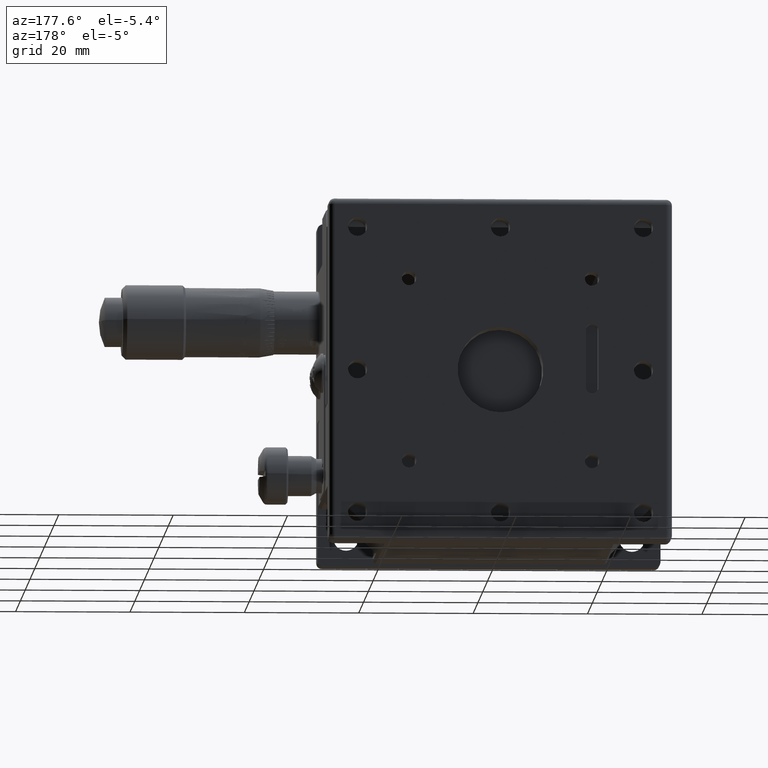
[diagram: clean part render]
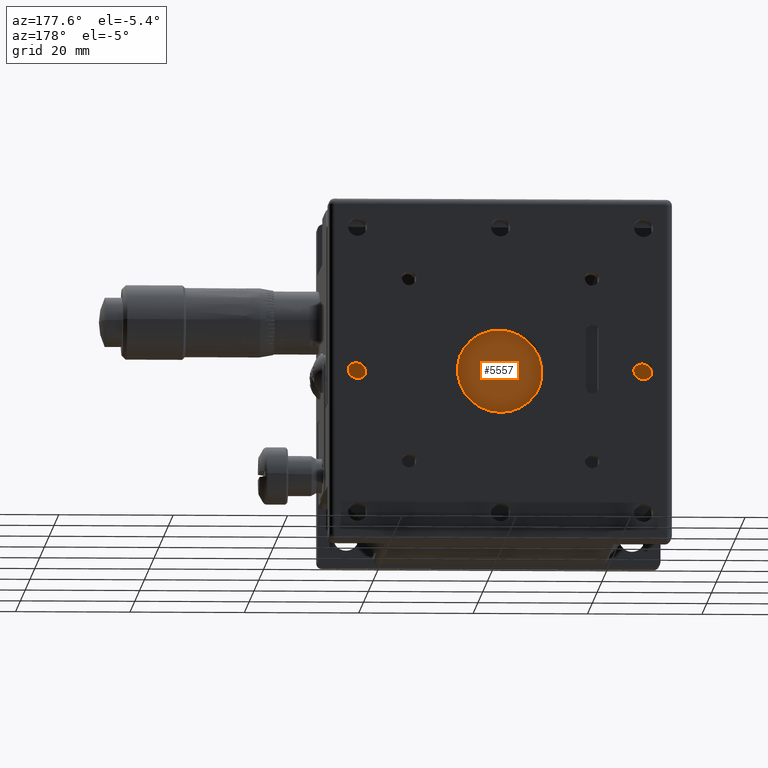
[diagram: same view with one face highlighted and labeled with its STEP entity id]
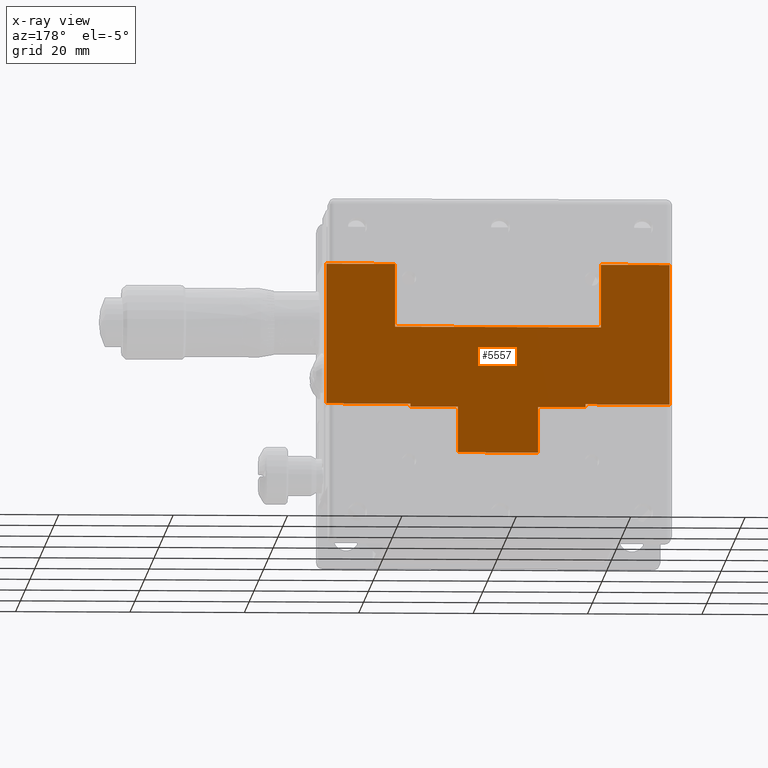
[diagram: x-ray of the same camera — body ghosted, the highlighted face saturated]
A machine part, auxiliary view. The second image highlights one B-rep face of the part: STEP entity #5557.
The next image is the same camera in x-ray: the body ghosted, the highlighted face saturated — about 0% of this face is hidden behind the body in this view.
In plain terms, the highlighted planar face has unit normal (-0, 1, 0).
Its self-contained STEP definition (entity closure, byte-faithful):
#434 = CARTESIAN_POINT ( 'NONE',  ( -30.00000000000000000, 44.00000000000000000, -4.999999999999940492 ) ) ;
#1234 = VERTEX_POINT ( 'NONE', #16058 ) ;
#2083 = DIRECTION ( 'NONE',  ( -1.000000000000000000, 0.000000000000000000, 2.360167994526269913E-16 ) ) ;
#2852 = CARTESIAN_POINT ( 'NONE',  ( 17.99999999999975131, 44.00000000000000000, 8.500000000000000000 ) ) ;
#3341 = DIRECTION ( 'NONE',  ( -1.000000000000000000, 0.000000000000000000, 0.000000000000000000 ) ) ;
#3960 = VECTOR ( 'NONE', #35652, 1000.000000000000000 ) ;
#4145 = DIRECTION ( 'NONE',  ( -1.000000000000000000, -1.927470528863119788E-16, 0.000000000000000000 ) ) ;
#5181 = CARTESIAN_POINT ( 'NONE',  ( 30.00000000000000000, 44.00000000000000000, -4.999999999999940492 ) ) ;
#5544 = ORIENTED_EDGE ( 'NONE', *, *, #31423, .T. ) ;
#5557 = ADVANCED_FACE ( 'NONE', ( #55652 ), #6132, .T. ) ;
#6132 = PLANE ( 'NONE',  #53976 ) ;
#6240 = ORIENTED_EDGE ( 'NONE', *, *, #53023, .T. ) ;
#6530 = DIRECTION ( 'NONE',  ( 0.000000000000000000, 0.000000000000000000, -1.000000000000000000 ) ) ;
#6620 = DIRECTION ( 'NONE',  ( 0.000000000000000000, 0.000000000000000000, 1.000000000000000000 ) ) ;
#6770 = VECTOR ( 'NONE', #58318, 1000.000000000000000 ) ;
#7343 = ORIENTED_EDGE ( 'NONE', *, *, #48224, .T. ) ;
#7370 = EDGE_CURVE ( 'NONE', #25936, #16353, #12568, .T. ) ;
#8137 = ORIENTED_EDGE ( 'NONE', *, *, #32105, .F. ) ;
#8183 = LINE ( 'NONE', #54098, #58220 ) ;
#8783 = ORIENTED_EDGE ( 'NONE', *, *, #43611, .T. ) ;
#8806 = CARTESIAN_POINT ( 'NONE',  ( 15.29999999999975024, 44.00000000000000000, -5.499999999999939604 ) ) ;
#9492 = LINE ( 'NONE', #23499, #42009 ) ;
#10305 = DIRECTION ( 'NONE',  ( 1.000000000000000000, 0.000000000000000000, 0.000000000000000000 ) ) ;
#11223 = CARTESIAN_POINT ( 'NONE',  ( 6.999999999999750422, 44.00000000000000000, -13.50000000000000000 ) ) ;
#11562 = VECTOR ( 'NONE', #52230, 1000.000000000000000 ) ;
#12385 = CARTESIAN_POINT ( 'NONE',  ( 30.00000000000000000, 44.00000000000000000, -4.999999999999940492 ) ) ;
#12568 = LINE ( 'NONE', #44194, #32592 ) ;
#12634 = VECTOR ( 'NONE', #42710, 1000.000000000000000 ) ;
#13141 = VECTOR ( 'NONE', #6530, 1000.000000000000000 ) ;
#13514 = CARTESIAN_POINT ( 'NONE',  ( 17.99999999999975131, 44.00000000000000000, 8.500000000000000000 ) ) ;
#13962 = DIRECTION ( 'NONE',  ( 1.000000000000000000, 0.000000000000000000, 0.000000000000000000 ) ) ;
#14261 = EDGE_LOOP ( 'NONE', ( #8783, #47550, #37733, #46657, #30521, #14347, #27853, #7343, #5544, #6240, #17008, #51707, #35350, #55006, #33531, #8137 ) ) ;
#14308 = LINE ( 'NONE', #11223, #21484 ) ;
#14347 = ORIENTED_EDGE ( 'NONE', *, *, #35243, .T. ) ;
#14964 = VECTOR ( 'NONE', #2083, 1000.000000000000000 ) ;
#15698 = DIRECTION ( 'NONE',  ( -1.000000000000000000, 0.000000000000000000, 0.000000000000000000 ) ) ;
#15973 = EDGE_CURVE ( 'NONE', #42672, #1234, #26929, .T. ) ;
#16058 = CARTESIAN_POINT ( 'NONE',  ( -18.00000000000024869, 44.00000000000000000, 19.50000000000000000 ) ) ;
#16353 = VERTEX_POINT ( 'NONE', #19007 ) ;
#16773 = DIRECTION ( 'NONE',  ( -0.000000000000000000, 1.000000000000000000, 0.000000000000000000 ) ) ;
#17008 = ORIENTED_EDGE ( 'NONE', *, *, #7370, .T. ) ;
#17492 = CARTESIAN_POINT ( 'NONE',  ( -15.30000000000024940, 44.00000000000000000, -5.499999999999939604 ) ) ;
#17949 = LINE ( 'NONE', #55510, #56855 ) ;
#18929 = LINE ( 'NONE', #434, #11562 ) ;
#19007 = CARTESIAN_POINT ( 'NONE',  ( -15.30000000000024940, 44.00000000000000000, -4.999999999999940492 ) ) ;
#19021 = VECTOR ( 'NONE', #29875, 1000.000000000000000 ) ;
#19231 = VERTEX_POINT ( 'NONE', #24279 ) ;
#19474 = VERTEX_POINT ( 'NONE', #24653 ) ;
#20236 = LINE ( 'NONE', #47368, #13141 ) ;
#20918 = EDGE_CURVE ( 'NONE', #22812, #19474, #26303, .T. ) ;
#21484 = VECTOR ( 'NONE', #15698, 1000.000000000000000 ) ;
#22345 = LINE ( 'NONE', #23510, #55318 ) ;
#22812 = VERTEX_POINT ( 'NONE', #52935 ) ;
#23499 = CARTESIAN_POINT ( 'NONE',  ( -30.00000000000000000, 44.00000000000000000, 19.50000000000000000 ) ) ;
#23510 = CARTESIAN_POINT ( 'NONE',  ( 17.99999999999975131, 44.00000000000000000, 8.500000000000000000 ) ) ;
#23664 = EDGE_CURVE ( 'NONE', #40275, #45291, #30866, .T. ) ;
#23685 = EDGE_CURVE ( 'NONE', #35117, #40275, #31161, .T. ) ;
#23831 = VERTEX_POINT ( 'NONE', #2852 ) ;
#24110 = CARTESIAN_POINT ( 'NONE',  ( -7.000000000000249578, 44.00000000000000000, -5.499999999999939604 ) ) ;
#24111 = EDGE_CURVE ( 'NONE', #53386, #47441, #18929, .T. ) ;
#24279 = CARTESIAN_POINT ( 'NONE',  ( 6.999999999999750422, 44.00000000000000000, -5.499999999999939604 ) ) ;
#24653 = CARTESIAN_POINT ( 'NONE',  ( 30.00000000000000000, 44.00000000000000000, 19.50000000000000000 ) ) ;
#25325 = EDGE_CURVE ( 'NONE', #47441, #1234, #9492, .T. ) ;
#25936 = VERTEX_POINT ( 'NONE', #17492 ) ;
#26303 = LINE ( 'NONE', #39432, #19021 ) ;
#26307 = CARTESIAN_POINT ( 'NONE',  ( 6.999999999999750422, 44.00000000000000000, -5.499999999999939604 ) ) ;
#26735 = CARTESIAN_POINT ( 'NONE',  ( 15.29999999999975024, 44.00000000000000000, -4.999999999999940492 ) ) ;
#26929 = LINE ( 'NONE', #45132, #33477 ) ;
#27853 = ORIENTED_EDGE ( 'NONE', *, *, #40361, .T. ) ;
#28524 = CARTESIAN_POINT ( 'NONE',  ( -7.000000000000249578, 44.00000000000000000, -13.50000000000000000 ) ) ;
#28707 = CARTESIAN_POINT ( 'NONE',  ( 6.999999999999750422, 44.00000000000000000, -13.50000000000000000 ) ) ;
#29827 = CARTESIAN_POINT ( 'NONE',  ( 15.29999999999975024, 44.00000000000000000, -5.499999999999939604 ) ) ;
#29875 = DIRECTION ( 'NONE',  ( 1.000000000000000000, 0.000000000000000000, 0.000000000000000000 ) ) ;
#30521 = ORIENTED_EDGE ( 'NONE', *, *, #23664, .T. ) ;
#30866 = LINE ( 'NONE', #8806, #6770 ) ;
#31161 = LINE ( 'NONE', #12385, #3960 ) ;
#31303 = CARTESIAN_POINT ( 'NONE',  ( -7.000000000000249578, 44.00000000000000000, -5.499999999999939604 ) ) ;
#31423 = EDGE_CURVE ( 'NONE', #43074, #57609, #8183, .T. ) ;
#32105 = EDGE_CURVE ( 'NONE', #23831, #42672, #22345, .T. ) ;
#32592 = VECTOR ( 'NONE', #6620, 1000.000000000000000 ) ;
#32830 = DIRECTION ( 'NONE',  ( 0.000000000000000000, 0.000000000000000000, -1.000000000000000000 ) ) ;
#32973 = CARTESIAN_POINT ( 'NONE',  ( -30.00000000000000000, 44.00000000000000000, 19.50000000000000000 ) ) ;
#33477 = VECTOR ( 'NONE', #36177, 1000.000000000000000 ) ;
#33531 = ORIENTED_EDGE ( 'NONE', *, *, #15973, .F. ) ;
#34926 = CARTESIAN_POINT ( 'NONE',  ( -18.00000000000024869, 44.00000000000000000, 8.500000000000000000 ) ) ;
#35117 = VERTEX_POINT ( 'NONE', #5181 ) ;
#35243 = EDGE_CURVE ( 'NONE', #45291, #19231, #58813, .T. ) ;
#35350 = ORIENTED_EDGE ( 'NONE', *, *, #24111, .T. ) ;
#35652 = DIRECTION ( 'NONE',  ( -1.000000000000000000, 0.000000000000000000, -2.360167994526269913E-16 ) ) ;
#36177 = DIRECTION ( 'NONE',  ( 0.000000000000000000, 0.000000000000000000, 1.000000000000000000 ) ) ;
#36189 = LINE ( 'NONE', #13514, #12634 ) ;
#37733 = ORIENTED_EDGE ( 'NONE', *, *, #50742, .T. ) ;
#39432 = CARTESIAN_POINT ( 'NONE',  ( -30.00000000000000000, 44.00000000000000000, 19.50000000000000000 ) ) ;
#40275 = VERTEX_POINT ( 'NONE', #26735 ) ;
#40303 = VECTOR ( 'NONE', #3341, 1000.000000000000000 ) ;
#40361 = EDGE_CURVE ( 'NONE', #19231, #56827, #20236, .T. ) ;
#41889 = CARTESIAN_POINT ( 'NONE',  ( -30.00000000000000000, 44.00000000000000000, 19.50000000000000000 ) ) ;
#42009 = VECTOR ( 'NONE', #13962, 1000.000000000000000 ) ;
#42672 = VERTEX_POINT ( 'NONE', #34926 ) ;
#42710 = DIRECTION ( 'NONE',  ( 0.000000000000000000, 0.000000000000000000, 1.000000000000000000 ) ) ;
#43074 = VERTEX_POINT ( 'NONE', #28524 ) ;
#43611 = EDGE_CURVE ( 'NONE', #23831, #22812, #36189, .T. ) ;
#44194 = CARTESIAN_POINT ( 'NONE',  ( -15.30000000000024940, 44.00000000000000000, -5.499999999999939604 ) ) ;
#44743 = DIRECTION ( 'NONE',  ( -1.000000000000000000, 0.000000000000000000, 0.000000000000000000 ) ) ;
#45132 = CARTESIAN_POINT ( 'NONE',  ( -18.00000000000024869, 44.00000000000000000, 8.500000000000000000 ) ) ;
#45291 = VERTEX_POINT ( 'NONE', #29827 ) ;
#46657 = ORIENTED_EDGE ( 'NONE', *, *, #23685, .T. ) ;
#47368 = CARTESIAN_POINT ( 'NONE',  ( 6.999999999999750422, 44.00000000000000000, -5.499999999999939604 ) ) ;
#47441 = VERTEX_POINT ( 'NONE', #41889 ) ;
#47550 = ORIENTED_EDGE ( 'NONE', *, *, #20918, .T. ) ;
#48224 = EDGE_CURVE ( 'NONE', #56827, #43074, #14308, .T. ) ;
#50742 = EDGE_CURVE ( 'NONE', #19474, #35117, #17949, .T. ) ;
#51707 = ORIENTED_EDGE ( 'NONE', *, *, #57511, .T. ) ;
#52230 = DIRECTION ( 'NONE',  ( 0.000000000000000000, 0.000000000000000000, 1.000000000000000000 ) ) ;
#52935 = CARTESIAN_POINT ( 'NONE',  ( 17.99999999999975131, 44.00000000000000000, 19.50000000000000000 ) ) ;
#53023 = EDGE_CURVE ( 'NONE', #57609, #25936, #53685, .T. ) ;
#53087 = CARTESIAN_POINT ( 'NONE',  ( -15.30000000000024940, 44.00000000000000000, -4.999999999999940492 ) ) ;
#53386 = VERTEX_POINT ( 'NONE', #54499 ) ;
#53685 = LINE ( 'NONE', #31303, #53966 ) ;
#53966 = VECTOR ( 'NONE', #44743, 1000.000000000000000 ) ;
#53976 = AXIS2_PLACEMENT_3D ( 'NONE', #32973, #16773, #10305 ) ;
#54098 = CARTESIAN_POINT ( 'NONE',  ( -7.000000000000249578, 44.00000000000000000, -13.50000000000000000 ) ) ;
#54499 = CARTESIAN_POINT ( 'NONE',  ( -30.00000000000000000, 44.00000000000000000, -4.999999999999940492 ) ) ;
#55006 = ORIENTED_EDGE ( 'NONE', *, *, #25325, .T. ) ;
#55318 = VECTOR ( 'NONE', #4145, 1000.000000000000000 ) ;
#55510 = CARTESIAN_POINT ( 'NONE',  ( 30.00000000000000000, 44.00000000000000000, 19.50000000000000000 ) ) ;
#55652 = FACE_OUTER_BOUND ( 'NONE', #14261, .T. ) ;
#56827 = VERTEX_POINT ( 'NONE', #28707 ) ;
#56855 = VECTOR ( 'NONE', #32830, 1000.000000000000000 ) ;
#57511 = EDGE_CURVE ( 'NONE', #16353, #53386, #57866, .T. ) ;
#57609 = VERTEX_POINT ( 'NONE', #24110 ) ;
#57866 = LINE ( 'NONE', #53087, #14964 ) ;
#58220 = VECTOR ( 'NONE', #58868, 1000.000000000000000 ) ;
#58318 = DIRECTION ( 'NONE',  ( 0.000000000000000000, 0.000000000000000000, -1.000000000000000000 ) ) ;
#58813 = LINE ( 'NONE', #26307, #40303 ) ;
#58868 = DIRECTION ( 'NONE',  ( 0.000000000000000000, 0.000000000000000000, 1.000000000000000000 ) ) ;